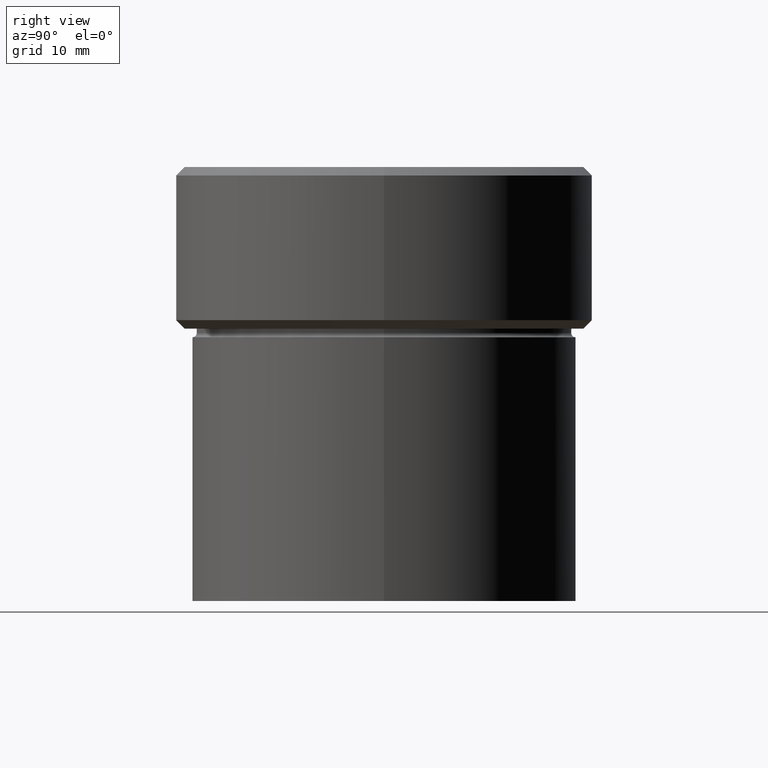
[diagram: clean part render]
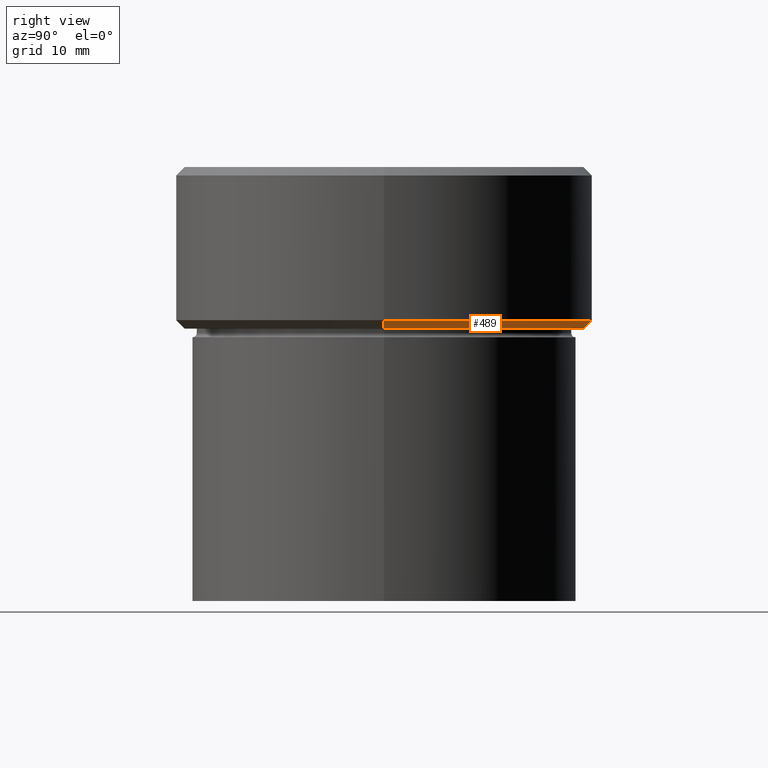
[diagram: same view with one face highlighted and labeled with its STEP entity id]
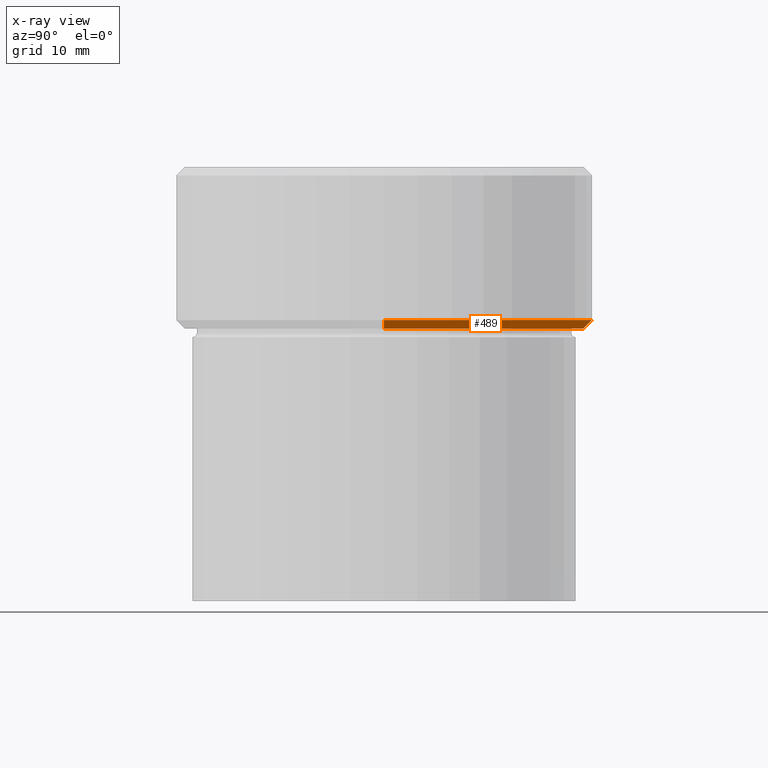
[diagram: x-ray of the same camera — body ghosted, the highlighted face saturated]
A machine part, right view. The second image highlights one B-rep face of the part: STEP entity #489.
The next image is the same camera in x-ray: the body ghosted, the highlighted face saturated — about 0% of this face is hidden behind the body in this view.
In plain terms, the highlighted conical surface has half-angle 45 deg.
Its self-contained STEP definition (entity closure, byte-faithful):
#25 = DIRECTION ( 'NONE',  ( -0.000000000000000000, -0.000000000000000000, 1.000000000000000000 ) ) ;
#28 = VERTEX_POINT ( 'NONE', #374 ) ;
#32 = AXIS2_PLACEMENT_3D ( 'NONE', #93, #25, #98 ) ;
#40 = AXIS2_PLACEMENT_3D ( 'NONE', #166, #241, #327 ) ;
#46 = DIRECTION ( 'NONE',  ( -0.000000000000000000, -0.000000000000000000, 1.000000000000000000 ) ) ;
#65 = LINE ( 'NONE', #178, #228 ) ;
#67 = VERTEX_POINT ( 'NONE', #142 ) ;
#93 = CARTESIAN_POINT ( 'NONE',  ( 0.000000000000000000, 0.000000000000000000, -17.99999999999998224 ) ) ;
#98 = DIRECTION ( 'NONE',  ( 1.000000000000000000, 0.000000000000000000, 0.000000000000000000 ) ) ;
#136 = CIRCLE ( 'NONE', #40, 23.49999999999999289 ) ;
#142 = CARTESIAN_POINT ( 'NONE',  ( -23.49999999999999289, 2.939152317953647500E-15, -18.99999999999999645 ) ) ;
#153 = VERTEX_POINT ( 'NONE', #486 ) ;
#159 = ORIENTED_EDGE ( 'NONE', *, *, #282, .F. ) ;
#166 = CARTESIAN_POINT ( 'NONE',  ( 0.000000000000000000, 0.000000000000000000, -18.99999999999999645 ) ) ;
#178 = CARTESIAN_POINT ( 'NONE',  ( -24.50000000000000000, 3.000384657911015469E-15, -17.99999999999998224 ) ) ;
#183 = ORIENTED_EDGE ( 'NONE', *, *, #203, .F. ) ;
#198 = VECTOR ( 'NONE', #300, 1000.000000000000114 ) ;
#203 = EDGE_CURVE ( 'NONE', #67, #207, #136, .T. ) ;
#207 = VERTEX_POINT ( 'NONE', #404 ) ;
#224 = FACE_OUTER_BOUND ( 'NONE', #353, .T. ) ;
#228 = VECTOR ( 'NONE', #471, 1000.000000000000114 ) ;
#241 = DIRECTION ( 'NONE',  ( 0.000000000000000000, 0.000000000000000000, -1.000000000000000000 ) ) ;
#250 = ORIENTED_EDGE ( 'NONE', *, *, #267, .F. ) ;
#267 = EDGE_CURVE ( 'NONE', #153, #28, #499, .T. ) ;
#282 = EDGE_CURVE ( 'NONE', #207, #153, #497, .T. ) ;
#294 = CARTESIAN_POINT ( 'NONE',  ( 0.000000000000000000, 0.000000000000000000, -17.99999999999998224 ) ) ;
#300 = DIRECTION ( 'NONE',  ( 0.7071067811865451302, 0.000000000000000000, 0.7071067811865500152 ) ) ;
#327 = DIRECTION ( 'NONE',  ( -1.000000000000000000, 0.000000000000000000, 0.000000000000000000 ) ) ;
#353 = EDGE_LOOP ( 'NONE', ( #183, #386, #250, #159 ) ) ;
#370 = CARTESIAN_POINT ( 'NONE',  ( 24.50000000000000000, 0.000000000000000000, -17.99999999999998224 ) ) ;
#374 = CARTESIAN_POINT ( 'NONE',  ( -24.50000000000000000, 3.000384657911015469E-15, -17.99999999999998224 ) ) ;
#386 = ORIENTED_EDGE ( 'NONE', *, *, #504, .T. ) ;
#400 = AXIS2_PLACEMENT_3D ( 'NONE', #294, #46, #500 ) ;
#404 = CARTESIAN_POINT ( 'NONE',  ( 23.49999999999999289, 0.000000000000000000, -18.99999999999999645 ) ) ;
#471 = DIRECTION ( 'NONE',  ( -0.7071067811865451302, 8.659560562354904508E-17, 0.7071067811865500152 ) ) ;
#482 = CONICAL_SURFACE ( 'NONE', #32, 24.50000000000000000, 0.7853981633974447263 ) ;
#486 = CARTESIAN_POINT ( 'NONE',  ( 24.50000000000000000, 0.000000000000000000, -17.99999999999998224 ) ) ;
#489 = ADVANCED_FACE ( 'NONE', ( #224 ), #482, .T. ) ;
#497 = LINE ( 'NONE', #370, #198 ) ;
#499 = CIRCLE ( 'NONE', #400, 24.50000000000000000 ) ;
#500 = DIRECTION ( 'NONE',  ( -1.000000000000000000, 0.000000000000000000, 0.000000000000000000 ) ) ;
#504 = EDGE_CURVE ( 'NONE', #67, #28, #65, .T. ) ;